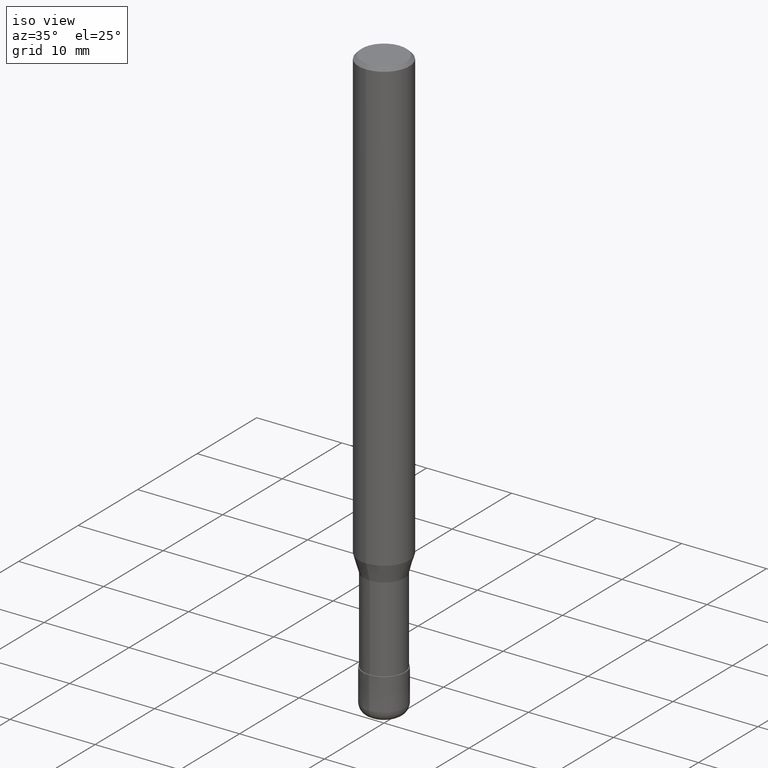
[diagram: clean part render]
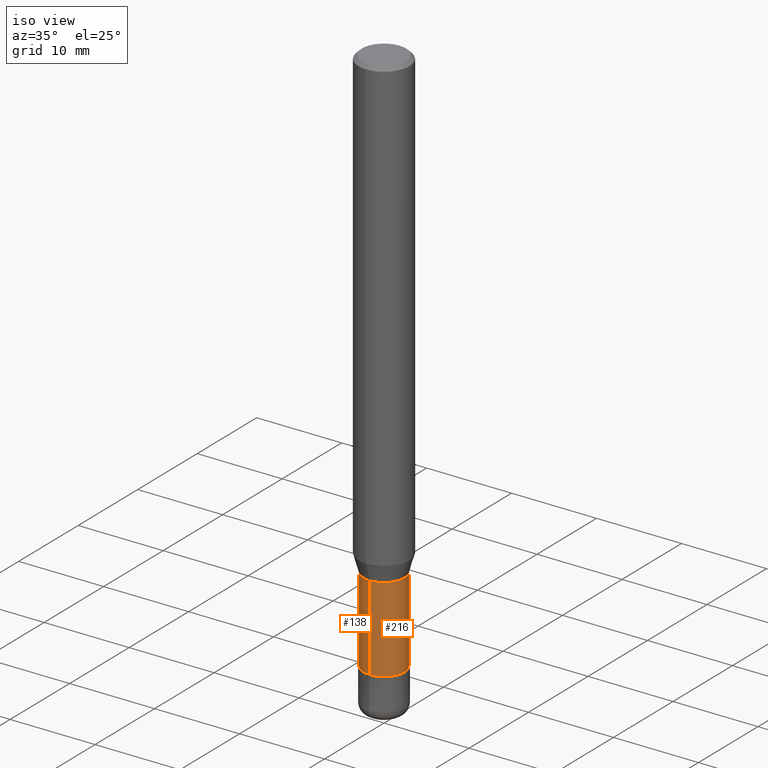
[diagram: same view with one multi-face feature highlighted, each face labeled with its STEP entity id]
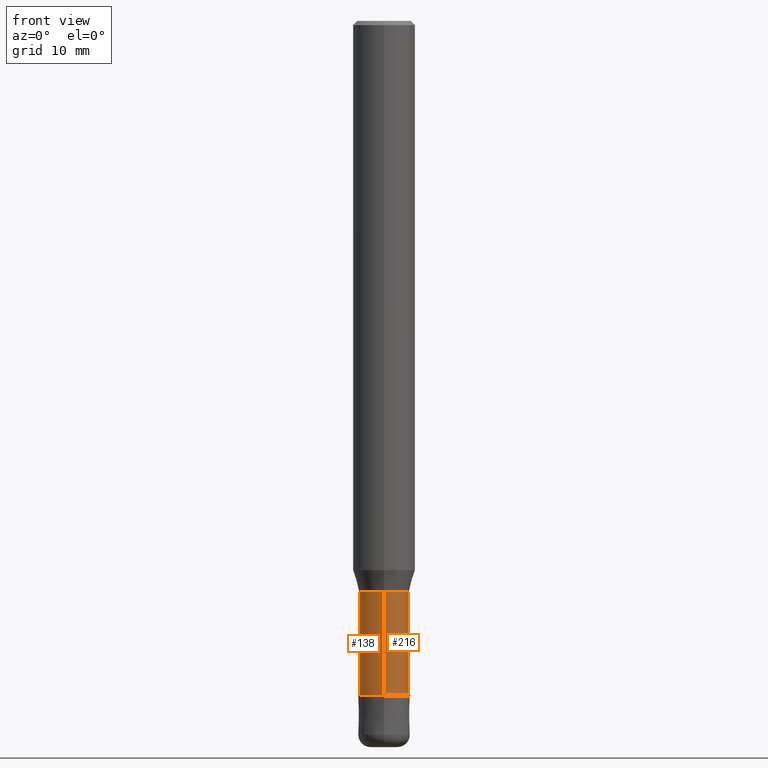
[diagram: same view with one multi-face feature highlighted, each face labeled with its STEP entity id]
A machine part, iso view. The highlighted faces form ONE feature: a constant-radius fillet chain: 2 tangent blend faces with common blend radius 2.4099 mm. The faces share edges in the B-rep.
A second angle (front view) of the same feature is appended — it is thin or edge-on in the first view.
Their STEP definitions:
[1] entity #138 (Cylinder):
#108=EDGE_CURVE('',#140,#214,#263,.T.);
#114=EDGE_CURVE('',#196,#226,#270,.T.);
#138=ADVANCED_FACE('',(#299),#300,.T.);
#140=VERTEX_POINT('',#302);
#196=VERTEX_POINT('',#363);
#202=EDGE_CURVE('',#226,#140,#369,.T.);
#212=EDGE_CURVE('',#196,#214,#379,.T.);
#214=VERTEX_POINT('',#381);
#226=VERTEX_POINT('',#395);
#263=LINE('',#428,#429);
#270=LINE('',#438,#439);
#299=FACE_OUTER_BOUND('',#473,.T.);
#300=CYLINDRICAL_SURFACE('',#474,2.40995);
#302=CARTESIAN_POINT('',(0.0,2.40995,-55.0));
#363=CARTESIAN_POINT('',(2.95124008239424E-016,-2.40995,-65.0));
#369=CIRCLE('',#563,2.40995);
#379=CIRCLE('',#578,2.40995);
#381=CARTESIAN_POINT('',(0.0,2.40995,-65.0));
#395=CARTESIAN_POINT('',(2.95124008239424E-016,-2.40995,-55.0));
#428=CARTESIAN_POINT('',(-2.95124008239424E-016,2.40995,-60.0));
#429=VECTOR('',#621,1.0);
#438=CARTESIAN_POINT('',(2.95124008239424E-016,-2.40995,-60.0));
#439=VECTOR('',#633,1.0);
#473=EDGE_LOOP('',(#670,#671,#672,#673));
#474=AXIS2_PLACEMENT_3D('',#674,#675,#676);
#563=AXIS2_PLACEMENT_3D('',#756,#757,#758);
#578=AXIS2_PLACEMENT_3D('',#766,#767,#768);
#621=DIRECTION('',(0.0,0.0,-1.0));
#633=DIRECTION('',(-0.0,-0.0,1.0));
#670=ORIENTED_EDGE('',*,*,#108,.T.);
#671=ORIENTED_EDGE('',*,*,#212,.F.);
#672=ORIENTED_EDGE('',*,*,#114,.T.);
#673=ORIENTED_EDGE('',*,*,#202,.T.);
#674=CARTESIAN_POINT('',(0.0,0.0,-60.0));
#675=DIRECTION('',(-0.0,-0.0,1.0));
#676=DIRECTION('',(0.0,1.0,0.0));
#756=CARTESIAN_POINT('',(0.0,0.0,-55.0));
#757=DIRECTION('',(0.0,0.0,-1.0));
#758=DIRECTION('',(0.0,1.0,0.0));
#766=CARTESIAN_POINT('',(0.0,0.0,-65.0));
#767=DIRECTION('',(0.0,0.0,-1.0));
#768=DIRECTION('',(0.0,1.0,0.0));
[2] entity #216 (Cylinder):
#108=EDGE_CURVE('',#140,#214,#263,.T.);
#110=EDGE_CURVE('',#140,#226,#265,.T.);
#114=EDGE_CURVE('',#196,#226,#270,.T.);
#140=VERTEX_POINT('',#302);
#196=VERTEX_POINT('',#363);
#198=EDGE_CURVE('',#214,#196,#365,.T.);
#214=VERTEX_POINT('',#381);
#216=ADVANCED_FACE('',(#383),#384,.T.);
#226=VERTEX_POINT('',#395);
#263=LINE('',#428,#429);
#265=CIRCLE('',#432,2.40995);
#270=LINE('',#438,#439);
#302=CARTESIAN_POINT('',(0.0,2.40995,-55.0));
#363=CARTESIAN_POINT('',(2.95124008239424E-016,-2.40995,-65.0));
#365=CIRCLE('',#558,2.40995);
#381=CARTESIAN_POINT('',(0.0,2.40995,-65.0));
#383=FACE_OUTER_BOUND('',#582,.T.);
#384=CYLINDRICAL_SURFACE('',#583,2.40995);
#395=CARTESIAN_POINT('',(2.95124008239424E-016,-2.40995,-55.0));
#428=CARTESIAN_POINT('',(-2.95124008239424E-016,2.40995,-60.0));
#429=VECTOR('',#621,1.0);
#432=AXIS2_PLACEMENT_3D('',#622,#623,#624);
#438=CARTESIAN_POINT('',(2.95124008239424E-016,-2.40995,-60.0));
#439=VECTOR('',#633,1.0);
#558=AXIS2_PLACEMENT_3D('',#753,#754,#755);
#582=EDGE_LOOP('',(#770,#771,#772,#773));
#583=AXIS2_PLACEMENT_3D('',#774,#775,#776);
#621=DIRECTION('',(0.0,0.0,-1.0));
#622=CARTESIAN_POINT('',(0.0,0.0,-55.0));
#623=DIRECTION('',(0.0,0.0,-1.0));
#624=DIRECTION('',(0.0,1.0,0.0));
#633=DIRECTION('',(-0.0,-0.0,1.0));
#753=CARTESIAN_POINT('',(0.0,0.0,-65.0));
#754=DIRECTION('',(0.0,0.0,-1.0));
#755=DIRECTION('',(0.0,1.0,0.0));
#770=ORIENTED_EDGE('',*,*,#108,.F.);
#771=ORIENTED_EDGE('',*,*,#110,.T.);
#772=ORIENTED_EDGE('',*,*,#114,.F.);
#773=ORIENTED_EDGE('',*,*,#198,.F.);
#774=CARTESIAN_POINT('',(0.0,0.0,-60.0));
#775=DIRECTION('',(-0.0,-0.0,1.0));
#776=DIRECTION('',(0.0,1.0,0.0));